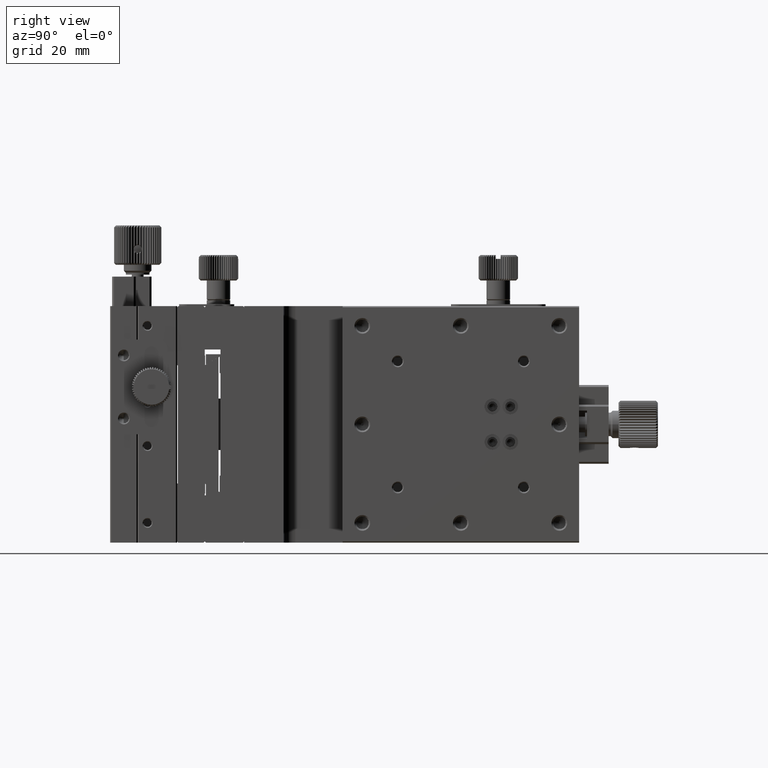
[diagram: clean part render]
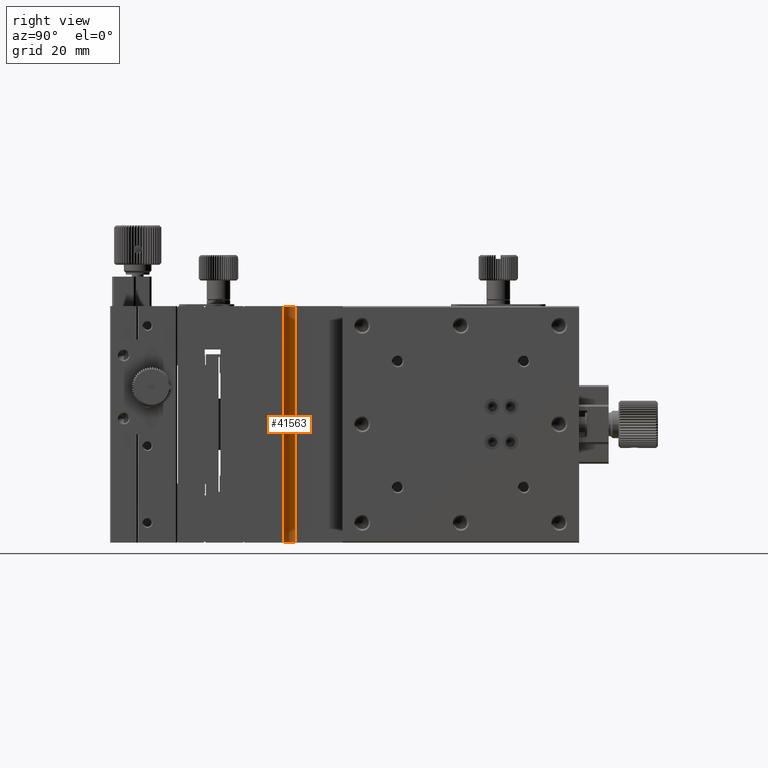
[diagram: same view with one face highlighted and labeled with its STEP entity id]
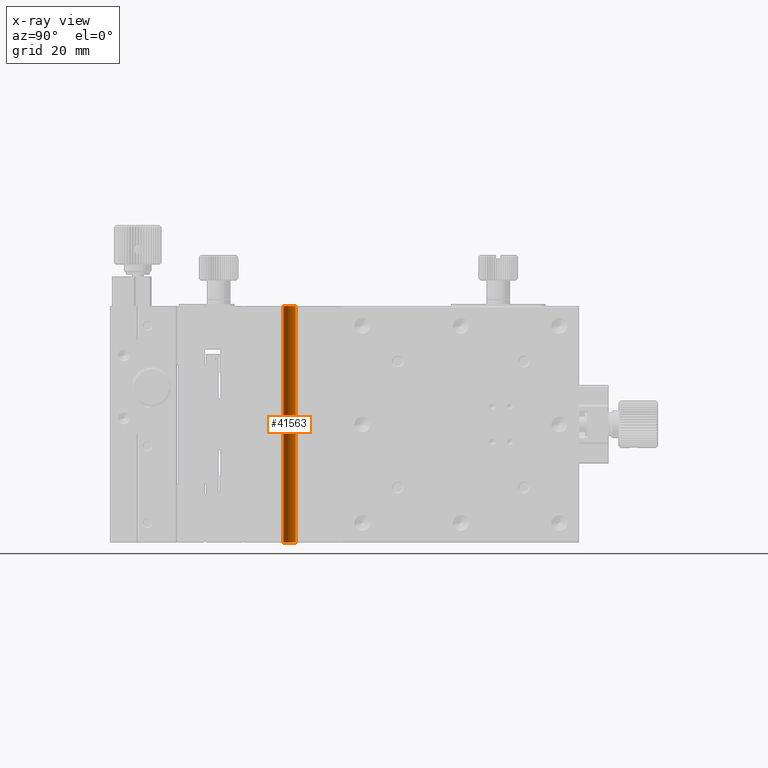
[diagram: x-ray of the same camera — body ghosted, the highlighted face saturated]
A machine part, right view. The second image highlights one B-rep face of the part: STEP entity #41563.
The next image is the same camera in x-ray: the body ghosted, the highlighted face saturated — about 0% of this face is hidden behind the body in this view.
In plain terms, the highlighted cylindrical surface (edge-blend (fillet) strip) has radius 3 mm, axis along (0, 0, 1).
Its self-contained STEP definition (entity closure, byte-faithful):
#53 = CARTESIAN_POINT ( 'NONE',  ( 23.00000000000000000, 13.00000000000000178, -60.00000000000000000 ) ) ;
#194 = AXIS2_PLACEMENT_3D ( 'NONE', #27033, #13369, #61109 ) ;
#2171 = ORIENTED_EDGE ( 'NONE', *, *, #27819, .F. ) ;
#2666 = CARTESIAN_POINT ( 'NONE',  ( 20.00000000000000000, 13.00000000000000178, -60.00000000000000000 ) ) ;
#3283 = CARTESIAN_POINT ( 'NONE',  ( 23.00000000000000000, 10.00000000000000178, -60.00000000000000000 ) ) ;
#3892 = VECTOR ( 'NONE', #34282, 1000.000000000000000 ) ;
#6418 = CIRCLE ( 'NONE', #35909, 2.999999999999999112 ) ;
#9585 = EDGE_CURVE ( 'NONE', #23192, #12051, #58430, .T. ) ;
#12051 = VERTEX_POINT ( 'NONE', #2666 ) ;
#12749 = EDGE_CURVE ( 'NONE', #39419, #12051, #41864, .T. ) ;
#13134 = EDGE_LOOP ( 'NONE', ( #24801, #26155, #25168, #2171 ) ) ;
#13369 = DIRECTION ( 'NONE',  ( -0.000000000000000000, -0.000000000000000000, -1.000000000000000000 ) ) ;
#13755 = DIRECTION ( 'NONE',  ( 0.000000000000000000, 0.000000000000000000, 1.000000000000000000 ) ) ;
#14404 = CYLINDRICAL_SURFACE ( 'NONE', #22949, 2.999999999999999112 ) ;
#15627 = CARTESIAN_POINT ( 'NONE',  ( 23.00000000000000000, 10.00000000000000178, 0.000000000000000000 ) ) ;
#16359 = VERTEX_POINT ( 'NONE', #15627 ) ;
#19016 = CARTESIAN_POINT ( 'NONE',  ( 20.00000000000000000, 13.00000000000000178, -60.00000000000000000 ) ) ;
#22949 = AXIS2_PLACEMENT_3D ( 'NONE', #53, #13755, #52236 ) ;
#23192 = VERTEX_POINT ( 'NONE', #41203 ) ;
#24590 = EDGE_CURVE ( 'NONE', #39419, #16359, #34892, .T. ) ;
#24801 = ORIENTED_EDGE ( 'NONE', *, *, #24590, .F. ) ;
#25168 = ORIENTED_EDGE ( 'NONE', *, *, #9585, .F. ) ;
#26155 = ORIENTED_EDGE ( 'NONE', *, *, #12749, .T. ) ;
#27033 = CARTESIAN_POINT ( 'NONE',  ( 23.00000000000000000, 13.00000000000000178, -60.00000000000000000 ) ) ;
#27819 = EDGE_CURVE ( 'NONE', #16359, #23192, #6418, .T. ) ;
#34282 = DIRECTION ( 'NONE',  ( 0.000000000000000000, 0.000000000000000000, -1.000000000000000000 ) ) ;
#34892 = LINE ( 'NONE', #43802, #57023 ) ;
#35909 = AXIS2_PLACEMENT_3D ( 'NONE', #51432, #36821, #41888 ) ;
#36821 = DIRECTION ( 'NONE',  ( -0.000000000000000000, -0.000000000000000000, -1.000000000000000000 ) ) ;
#39419 = VERTEX_POINT ( 'NONE', #3283 ) ;
#41203 = CARTESIAN_POINT ( 'NONE',  ( 20.00000000000000000, 13.00000000000000178, 0.000000000000000000 ) ) ;
#41563 = ADVANCED_FACE ( 'NONE', ( #48424 ), #14404, .F. ) ;
#41864 = CIRCLE ( 'NONE', #194, 2.999999999999999112 ) ;
#41888 = DIRECTION ( 'NONE',  ( 1.000000000000000000, 0.000000000000000000, 0.000000000000000000 ) ) ;
#43473 = DIRECTION ( 'NONE',  ( 0.000000000000000000, 0.000000000000000000, 1.000000000000000000 ) ) ;
#43802 = CARTESIAN_POINT ( 'NONE',  ( 23.00000000000000000, 10.00000000000000178, -60.00000000000000000 ) ) ;
#48424 = FACE_OUTER_BOUND ( 'NONE', #13134, .T. ) ;
#51432 = CARTESIAN_POINT ( 'NONE',  ( 23.00000000000000000, 13.00000000000000178, 0.000000000000000000 ) ) ;
#52236 = DIRECTION ( 'NONE',  ( 1.000000000000000000, 0.000000000000000000, 0.000000000000000000 ) ) ;
#57023 = VECTOR ( 'NONE', #43473, 1000.000000000000000 ) ;
#58430 = LINE ( 'NONE', #19016, #3892 ) ;
#61109 = DIRECTION ( 'NONE',  ( 1.000000000000000000, 0.000000000000000000, 0.000000000000000000 ) ) ;